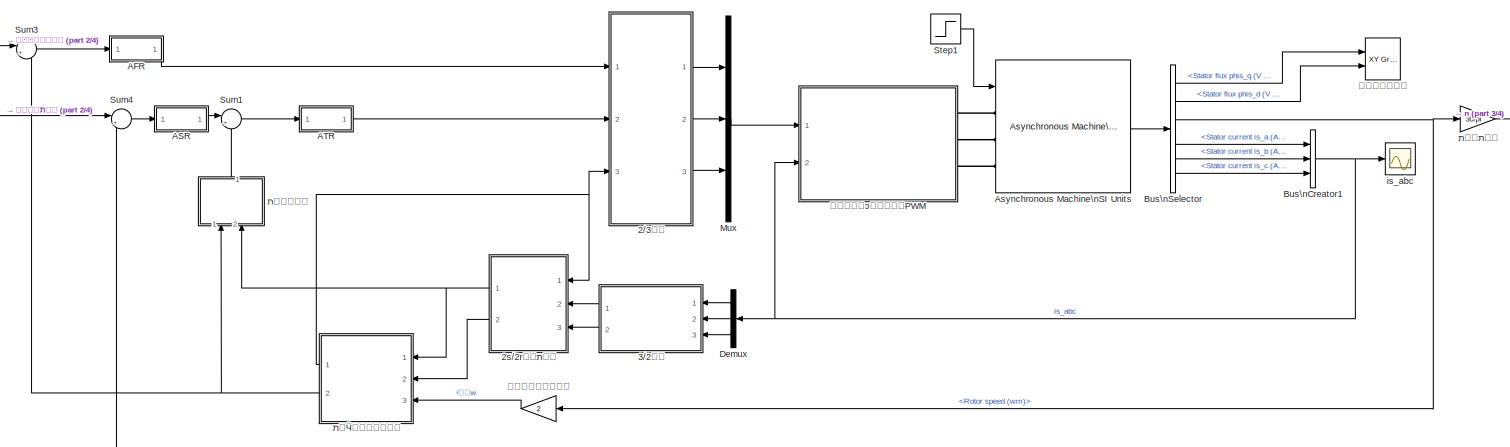
[diagram: root canvas - part 1/4, full width, top band]
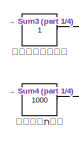
[diagram: root canvas - part 2/4, top left region]
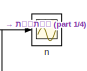
[diagram: root canvas - part 3/4, top right region]
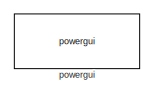
[diagram: root canvas - part 4/4, bottom left region]
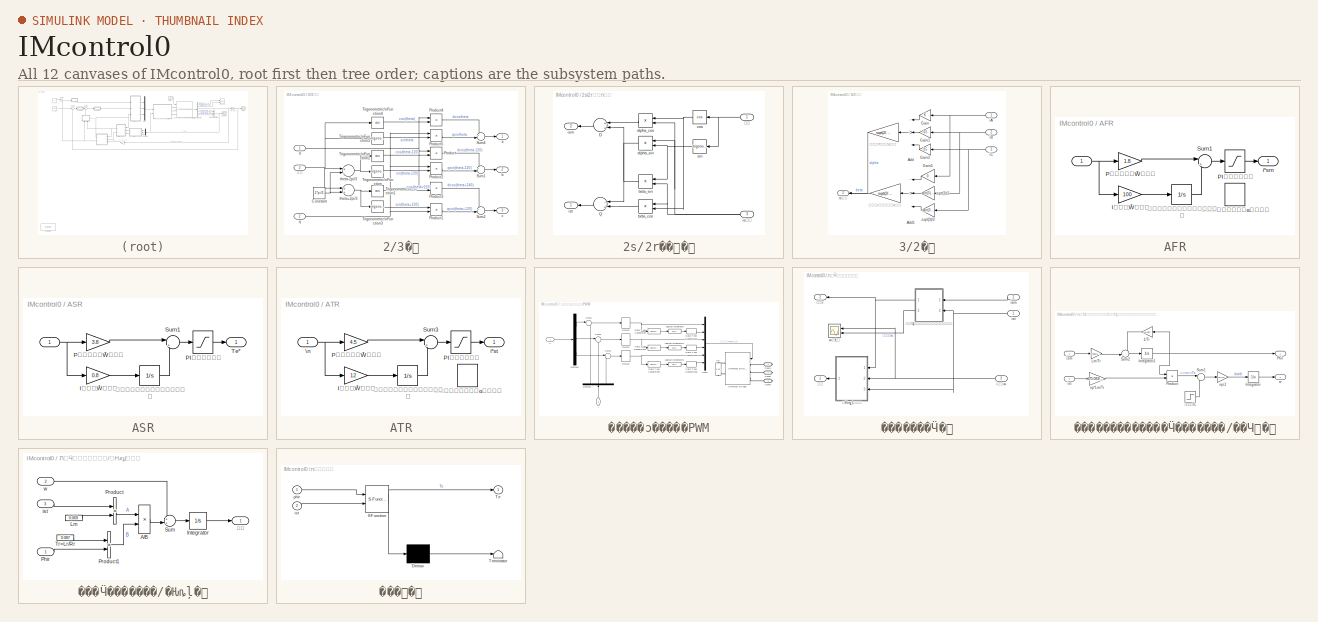
[diagram: thumbnail index - all 12 canvases of the model, root first then tree order]
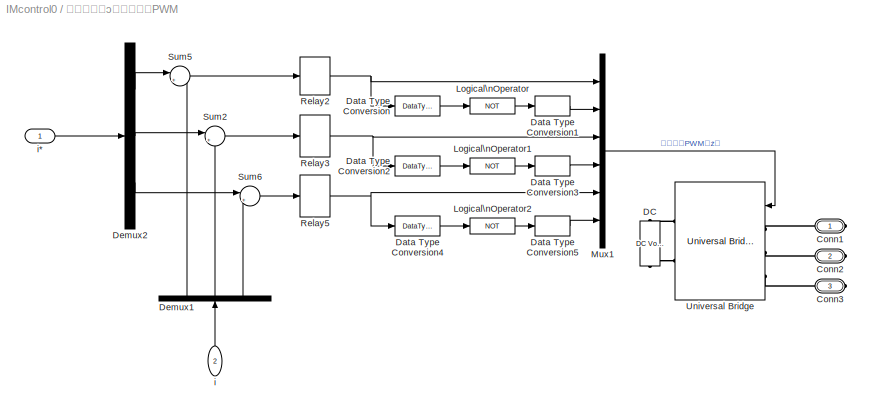
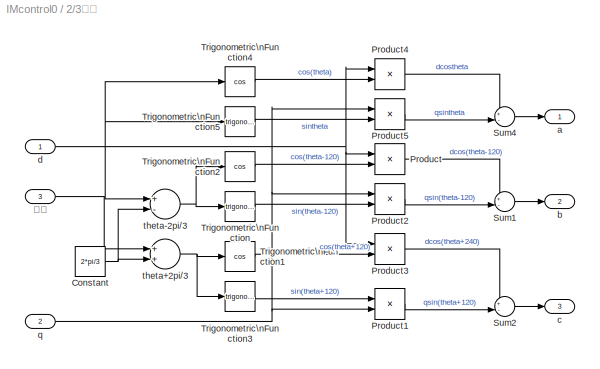
MODEL IMcontrol0
KIND model
BLOCK [SubSystem] 2//3变换
  Ports = [3, 3]
  RequestExecContextInheritance = off
  SID = 157
BLOCK [Constant] 2//3变换/Constant
  SID = 161
  Value = 2*pi/3
BLOCK [Product] 2//3变换/Product
  InputSameDT = off
  OutDataTypeStr = Inherit: Inherit via internal rule
  Ports = [2, 1]
  RndMeth = Floor
  SID = 162
  SaturateOnIntegerOverflow = off
BLOCK [Product] 2//3变换/Product1
  InputSameDT = off
  OutDataTypeStr = Inherit: Inherit via internal rule
  Ports = [2, 1]
  RndMeth = Floor
  SID = 163
  SaturateOnIntegerOverflow = off
BLOCK [Product] 2//3变换/Product2
  InputSameDT = off
  OutDataTypeStr = Inherit: Inherit via internal rule
  Ports = [2, 1]
  RndMeth = Floor
  SID = 164
  SaturateOnIntegerOverflow = off
BLOCK [Product] 2//3变换/Product3
  InputSameDT = off
  OutDataTypeStr = Inherit: Inherit via internal rule
  Ports = [2, 1]
  RndMeth = Floor
  SID = 165
  SaturateOnIntegerOverflow = off
BLOCK [Product] 2//3变换/Product4
  InputSameDT = off
  OutDataTypeStr = Inherit: Inherit via internal rule
  Ports = [2, 1]
  RndMeth = Floor
  SID = 166
  SaturateOnIntegerOverflow = off
BLOCK [Product] 2//3变换/Product5
  InputSameDT = off
  OutDataTypeStr = Inherit: Inherit via internal rule
  Ports = [2, 1]
  RndMeth = Floor
  SID = 167
  SaturateOnIntegerOverflow = off
BLOCK [Sum] 2//3变换/Sum1
  IconShape = round
  InputSameDT = off
  Inputs = +-|
  OutDataTypeStr = Inherit: Inherit via internal rule
  Ports = [2, 1]
  SID = 168
  SaturateOnIntegerOverflow = off
BLOCK [Sum] 2//3变换/Sum2
  IconShape = round
  InputSameDT = off
  Inputs = +-|
  OutDataTypeStr = Inherit: Inherit via internal rule
  Ports = [2, 1]
  SID = 169
  SaturateOnIntegerOverflow = off
BLOCK [Sum] 2//3变换/Sum4
  IconShape = round
  InputSameDT = off
  Inputs = +-|
  OutDataTypeStr = Inherit: Inherit via internal rule
  Ports = [2, 1]
  SID = 170
  SaturateOnIntegerOverflow = off
BLOCK [Trigonometry] 2//3变换/Trigonometric\nFunction
  Ports = [1, 1]
  SID = 171
BLOCK [Trigonometry] 2//3变换/Trigonometric\nFunction1
  Operator = cos
  Ports = [1, 1]
  SID = 172
BLOCK [Trigonometry] 2//3变换/Trigonometric\nFunction2
  Operator = cos
  Ports = [1, 1]
  SID = 173
BLOCK [Trigonometry] 2//3变换/Trigonometric\nFunction3
  Ports = [1, 1]
  SID = 174
BLOCK [Trigonometry] 2//3变换/Trigonometric\nFunction4
  Operator = cos
  Ports = [1, 1]
  SID = 175
BLOCK [Trigonometry] 2//3变换/Trigonometric\nFunction5
  Ports = [1, 1]
  SID = 176
BLOCK [Outport] 2//3变换/a
  IconDisplay = Port number
  SID = 179
  VectorParamsAs1DForOutWhenUnconnected = off
BLOCK [Outport] 2//3变换/b
  IconDisplay = Port number
  Port = 2
  SID = 180
  VectorParamsAs1DForOutWhenUnconnected = off
BLOCK [Outport] 2//3变换/c
  IconDisplay = Port number
  Port = 3
  SID = 181
  VectorParamsAs1DForOutWhenUnconnected = off
BLOCK [Inport] 2//3变换/d
  IconDisplay = Port number
  SID = 160
BLOCK [Inport] 2//3变换/q
  IconDisplay = Port number
  Port = 2
  SID = 158
BLOCK [Sum] 2//3变换/theta+2pi//3
  InputSameDT = off
  OutDataTypeStr = Inherit: Inherit via internal rule
  Ports = [2, 1]
  SID = 177
  SaturateOnIntegerOverflow = off
BLOCK [Sum] 2//3变换/theta-2pi//3
  InputSameDT = off
  Inputs = +-
  OutDataTypeStr = Inherit: Inherit via internal rule
  Ports = [2, 1]
  SID = 178
  SaturateOnIntegerOverflow = off
BLOCK [Inport] 2//3变换/¦Õ
  IconDisplay = Port number
  Port = 3
  SID = 159
BLOCK [SubSystem] 2s//2r旋转变换
  Ports = [3, 2]
  RequestExecContextInheritance = off
  SID = 242
BLOCK [Sum] 2s//2r旋转变换/D
  InputSameDT = off
  OutDataTypeStr = Inherit: Inherit via internal rule
  Ports = [2, 1]
  SID = 25
  SaturateOnIntegerOverflow = off
BLOCK [Sum] 2s//2r旋转变换/Q
  InputSameDT = off
  Inputs = -+
  OutDataTypeStr = Inherit: Inherit via internal rule
  Ports = [2, 1]
  SID = 30
  SaturateOnIntegerOverflow = off
BLOCK [Product] 2s//2r旋转变换/alpha_cos
  InputSameDT = off
  OutDataTypeStr = Inherit: Inherit via internal rule
  Ports = [2, 1]
  RndMeth = Floor
  SID = 37
  SaturateOnIntegerOverflow = off
BLOCK [Product] 2s//2r旋转变换/alpha_sin
  InputSameDT = off
  OutDataTypeStr = Inherit: Inherit via internal rule
  Ports = [2, 1]
  RndMeth = Floor
  SID = 38
  SaturateOnIntegerOverflow = off
BLOCK [Product] 2s//2r旋转变换/beta_cos
  InputSameDT = off
  OutDataTypeStr = Inherit: Inherit via internal rule
  Ports = [2, 1]
  RndMeth = Floor
  SID = 39
  SaturateOnIntegerOverflow = off
BLOCK [Product] 2s//2r旋转变换/beta_sin
  InputSameDT = off
  OutDataTypeStr = Inherit: Inherit via internal rule
  Ports = [2, 1]
  RndMeth = Floor
  SID = 40
  SaturateOnIntegerOverflow = off
BLOCK [Trigonometry] 2s//2r旋转变换/cos
  Operator = cos
  Ports = [1, 1]
  SID = 33
BLOCK [Outport] 2s//2r旋转变换/ism
  IconDisplay = Port number
  Port = 2
  SID = 247
BLOCK [Outport] 2s//2r旋转变换/ist
  IconDisplay = Port number
  SID = 246
BLOCK [Inport] 2s//2r旋转变换/is¦Á
  IconDisplay = Port number
  Port = 2
  SID = 244
BLOCK [Inport] 2s//2r旋转变换/is¦Â
  IconDisplay = Port number
  Port = 3
  SID = 245
BLOCK [Trigonometry] 2s//2r旋转变换/sin
  Ports = [1, 1]
  SID = 34
BLOCK [Inport] 2s//2r旋转变换/¦Õ
  IconDisplay = Port number
  SID = 243
BLOCK [SubSystem] 3//2变换
  Ports = [3, 2]
  RequestExecContextInheritance = off
  SID = 235
BLOCK [Gain] 3//2变换/-sqrt(3)//2
  Gain = -sqrt(3)/2
  OutDataTypeStr = Inherit: Inherit via internal rule
  ParamDataTypeStr = Inherit: Inherit via internal rule
  SID = 22
  SaturateOnIntegerOverflow = off
BLOCK [Sum] 3//2变换/Add
  InputSameDT = off
  Inputs = 3
  OutDataTypeStr = Inherit: Inherit via internal rule
  Ports = [3, 1]
  SID = 23
  SaturateOnIntegerOverflow = off
BLOCK [Sum] 3//2变换/Add1
  InputSameDT = off
  Inputs = 3
  OutDataTypeStr = Inherit: Inherit via internal rule
  Ports = [3, 1]
  SID = 24
  SaturateOnIntegerOverflow = off
BLOCK [Gain] 3//2变换/Gain
  OutDataTypeStr = Inherit: Inherit via internal rule
  ParamDataTypeStr = Inherit: Inherit via internal rule
  SID = 26
  SaturateOnIntegerOverflow = off
BLOCK [Gain] 3//2变换/Gain1
  Gain = -0.5
  OutDataTypeStr = Inherit: Inherit via internal rule
  ParamDataTypeStr = Inherit: Inherit via internal rule
  SID = 27
  SaturateOnIntegerOverflow = off
BLOCK [Gain] 3//2变换/Gain2
  Gain = -0.5
  OutDataTypeStr = Inherit: Inherit via internal rule
  ParamDataTypeStr = Inherit: Inherit via internal rule
  SID = 28
  SaturateOnIntegerOverflow = off
BLOCK [Gain] 3//2变换/Gain5
  Gain = 0
  OutDataTypeStr = Inherit: Inherit via internal rule
  ParamDataTypeStr = Inherit: Inherit via internal rule
  SID = 29
  SaturateOnIntegerOverflow = off
BLOCK [Inport] 3//2变换/iA
  IconDisplay = Port number
  SID = 236
BLOCK [Inport] 3//2变换/iB
  IconDisplay = Port number
  Port = 2
  SID = 237
BLOCK [Inport] 3//2变换/iC
  IconDisplay = Port number
  Port = 3
  SID = 238
BLOCK [Outport] 3//2变换/is¦Á
  IconDisplay = Port number
  SID = 239
BLOCK [Outport] 3//2变换/is¦Â
  IconDisplay = Port number
  Port = 2
  SID = 240
BLOCK [Gain] 3//2变换/sqrt(3)//2
  Gain = sqrt(3)/2
  OutDataTypeStr = Inherit: Inherit via internal rule
  ParamDataTypeStr = Inherit: Inherit via internal rule
  SID = 41
  SaturateOnIntegerOverflow = off
BLOCK [Gain] 3//2变换/功率保持系数
  Gain = sqrt(2/3)
  OutDataTypeStr = Inherit: Inherit via internal rule
  ParamDataTypeStr = Inherit: Inherit via internal rule
  SID = 43
  SaturateOnIntegerOverflow = off
BLOCK [Gain] 3//2变换/功率不变保持系数
  Gain = sqrt(2/3)
  OutDataTypeStr = Inherit: Inherit via internal rule
  ParamDataTypeStr = Inherit: Inherit via internal rule
  SID = 42
  SaturateOnIntegerOverflow = off
BLOCK [SubSystem] AFR
  Ports = [1, 1]
  RequestExecContextInheritance = off
  SID = 126
BLOCK [Inport] AFR/ 
  IconDisplay = Port number
  SID = 127
BLOCK [Gain] AFR/I积分放大倍数
  Gain = 100
  OutDataTypeStr = Inherit: Inherit via internal rule
  ParamDataTypeStr = Inherit: Inherit via internal rule
  SID = 128
  SaturateOnIntegerOverflow = off
BLOCK [Saturate] AFR/PI输出限幅
  InputPortMap = u0
  LowerLimit = -13
  Ports = [1, 1]
  SID = 129
  UpperLimit = 13
BLOCK [Gain] AFR/P比例放大倍数
  Gain = 1.8
  OutDataTypeStr = Inherit: Inherit via internal rule
  ParamDataTypeStr = Inherit: Inherit via internal rule
  SID = 130
  SaturateOnIntegerOverflow = off
BLOCK [Sum] AFR/Sum1
  IconShape = round
  InputSameDT = off
  Inputs = |++
  OutDataTypeStr = Inherit: Inherit via internal rule
  Ports = [2, 1]
  SID = 131
  SaturateOnIntegerOverflow = off
BLOCK [Outport] AFR/i*sm
  IconDisplay = Port number
  SID = 134
  VectorParamsAs1DForOutWhenUnconnected = off
BLOCK [DiscreteIntegrator] AFR/带限幅的离散积分
  ICPrevOutput = DiscIntNeverNeededParam
  ICPrevScaledInput = DiscIntNeverNeededParam
  Ports = [1, 1]
  SID = 132
  SampleTime = 2e-5
BLOCK [Integrator] AFR/带限幅的连续积分
  LimitOutput = on
  LowerSaturationLimit = -15
  Ports = [1, 1]
  SID = 133
  UpperSaturationLimit = 15
BLOCK [SubSystem] ASR
  Ports = [1, 1]
  RequestExecContextInheritance = off
  SID = 146
BLOCK [Inport] ASR/  
  IconDisplay = Port number
  SID = 147
BLOCK [Gain] ASR/I积分放大倍数
  Gain = 0.8
  OutDataTypeStr = Inherit: Inherit via internal rule
  ParamDataTypeStr = Inherit: Inherit via internal rule
  SID = 148
  SaturateOnIntegerOverflow = off
BLOCK [Saturate] ASR/PI输出限幅
  InputPortMap = u0
  LowerLimit = -75
  Ports = [1, 1]
  SID = 149
  UpperLimit = 75
BLOCK [Gain] ASR/P比例放大倍数
  Gain = 3.8
  OutDataTypeStr = Inherit: Inherit via internal rule
  ParamDataTypeStr = Inherit: Inherit via internal rule
  SID = 150
  SaturateOnIntegerOverflow = off
BLOCK [Sum] ASR/Sum1
  IconShape = round
  InputSameDT = off
  Inputs = |++
  OutDataTypeStr = Inherit: Inherit via internal rule
  Ports = [2, 1]
  SID = 151
  SaturateOnIntegerOverflow = off
BLOCK [Outport] ASR/Te*
  IconDisplay = Port number
  SID = 153
  VectorParamsAs1DForOutWhenUnconnected = off
BLOCK [Integrator] ASR/带限幅的连续积分
  LimitOutput = on
  LowerSaturationLimit = -80
  Ports = [1, 1]
  SID = 152
  UpperSaturationLimit = 80
BLOCK [SubSystem] ATR
  Ports = [1, 1]
  RequestExecContextInheritance = off
  SID = 137
BLOCK [Gain] ATR/I积分放大倍数
  Gain = 12
  OutDataTypeStr = Inherit: Inherit via internal rule
  ParamDataTypeStr = Inherit: Inherit via internal rule
  SID = 139
  SaturateOnIntegerOverflow = off
BLOCK [Saturate] ATR/PI输出限幅
  InputPortMap = u0
  LowerLimit = -60
  Ports = [1, 1]
  SID = 140
  UpperLimit = 60
BLOCK [Gain] ATR/P比例放大倍数
  Gain = 4.5
  OutDataTypeStr = Inherit: Inherit via internal rule
  ParamDataTypeStr = Inherit: Inherit via internal rule
  SID = 141
  SaturateOnIntegerOverflow = off
BLOCK [Sum] ATR/Sum3
  IconShape = round
  InputSameDT = off
  Inputs = |++
  OutDataTypeStr = Inherit: Inherit via internal rule
  Ports = [2, 1]
  SID = 142
  SaturateOnIntegerOverflow = off
BLOCK [Inport] ATR/\n
  IconDisplay = Port number
  SID = 138
BLOCK [Outport] ATR/i*st
  IconDisplay = Port number
  SID = 145
  VectorParamsAs1DForOutWhenUnconnected = off
BLOCK [DiscreteIntegrator] ATR/带限幅的离散积分
  ICPrevOutput = DiscIntNeverNeededParam
  ICPrevScaledInput = DiscIntNeverNeededParam
  Ports = [1, 1]
  SID = 143
  SampleTime = 2e-5
BLOCK [Integrator] ATR/带限幅的连续积分
  LimitOutput = on
  LowerSaturationLimit = -65
  Ports = [1, 1]
  SID = 144
  UpperSaturationLimit = 65
BLOCK [Reference] Asynchronous Machine\nSI Units  REF=powerlib/Machines/Asynchronous Machine\nSI Units
  Cage1 = [0.4155 0.002066]
  Cage2 = [0.4168 0.0003495]
  InitialConditions = [1 0 0 0 0 0 0 0]
  IterativeDiscreteModel = Trapezoidal non iterative
  IterativeModel = Trapezoidal non iterative
  Lm = 0.069
  LoadFlowParameters = 1492000
  MeasurementBus = off
  Mechanical = [0.19 0 2]
  MechanicalLoad = Torque Tm
  NominalParameters = [2200 380 50]
  Pmec = 1.492e+006
  PolePairs = 2
  Ports = [1, 1, 0, 0, 0, 3]
  PresetModel = No
  ReferenceFrame = Stationary
  Rotor = [0.816 0.002]
  RotorType = Squirrel-cage
  SID = 46
  Saturation = [14.03593122, 27.81365428, 53.79336849, 72.68890987, 97.98006896, 148.6815601, 215.7428561, 302.9841135, 428.7778367 ; 230, 322, 414, 460, 506, 552, 598, 644, 690]
  ShowDetailedParameters = on
  SimulateSaturation = off
  SourceBlock = powerlib/Machines/Asynchronous Machine\nSI Units
  SourceProductBaseCode = PS
  SourceProductName = Simscape Electrical
  SourceType = Asynchronous Machine
  Stator = [0.435 0.002]
  TsBlock = -1
  TsPowergui = 0
  Units = SI
BLOCK [BusCreator] Bus\nCreator1
  DisplayOption = bar
  InheritFromInputs = on
  Inputs = 3
  Ports = [3, 1]
  SID = 204
BLOCK [BusSelector] Bus\nSelector
  OutputAsBus = off
  OutputSignals = Stator measurements.Stator flux phis_q (V s),Stator measurements.Stator flux phis_d (V s),Mechanical.Rotor speed (wm),Stator measurements.Stator current is_a (A),Stator measurements.Stator current is_b (A),Stator measurements.Stator current is_c (A)
  Ports = [1, 6]
  SID = 205
BLOCK [Demux] Demux
  DisplayOption = bar
  Outputs = 3
  Ports = [1, 3]
  SID = 217
BLOCK [Mux] Mux
  DisplayOption = bar
  Inputs = 3
  Ports = [3, 1]
  SID = 156
BLOCK [Step] Step1
  After = 55
  SID = 60
  SampleTime = 0
  Time = 0.6
BLOCK [Sum] Sum1
  IconShape = round
  InputSameDT = off
  Inputs = |+-
  OutDataTypeStr = Inherit: Inherit via internal rule
  Ports = [2, 1]
  SID = 122
  SaturateOnIntegerOverflow = off
BLOCK [Sum] Sum3
  IconShape = round
  InputSameDT = off
  Inputs = |+-
  OutDataTypeStr = Inherit: Inherit via internal rule
  Ports = [2, 1]
  SID = 123
  SaturateOnIntegerOverflow = off
BLOCK [Sum] Sum4
  IconShape = round
  InputSameDT = off
  Inputs = |+-
  OutDataTypeStr = Inherit: Inherit via internal rule
  Ports = [2, 1]
  SID = 124
  SaturateOnIntegerOverflow = off
BLOCK [Scope] is_abc
  Floating = off
  NumInputPorts = 1
  Ports = [1]
  SID = 208
  ScopeSpecificationString = Simulink.scopes.TimeScopeBlockCfg('CurrentConfiguration', extmgr.ConfigurationSet(extmgr.Configuration('Core','General UI',true),extmgr.Configuration('Core','Source UI',true),extmgr.Configuration('Sources','WiredSimulink',true,'DataLoggingVariableName','ScopeData1'),extmgr.Configuration('Visuals','Time Domain',true,'SerializedDisplays',{struct('MinYLimReal','-77.32754','MaxYLimReal','77.3987','YLa...<+1533ch>
BLOCK [Scope] n
  Floating = off
  NumInputPorts = 1
  Ports = [1]
  SID = 209
  ScopeSpecificationString = Simulink.scopes.TimeScopeBlockCfg('CurrentConfiguration', extmgr.ConfigurationSet(extmgr.Configuration('Core','General UI',true),extmgr.Configuration('Core','Source UI',true),extmgr.Configuration('Sources','WiredSimulink',true),extmgr.Configuration('Visuals','Time Domain',true,'SerializedDisplays',{struct('MinYLimReal','-127.89091','MaxYLimReal','1151.0182','YLabelReal','','MinYLimMag',' 0.00000',...<+1415ch>
BLOCK [Reference] powergui  REF=powerlib/powergui
  AutomaticDiscreteSolvers = off
  ContinueOnMaxIteration = off
  CurrentSourceSwitches = off
  DisableRonSwitches = off
  DisableSnubberDevices = off
  DisableVfSwitches = off
  DisplayEquations = off
  DisplayStyle = 1
  EnableUseOfTLC = off
  ErrMax = 1e-4
  ExternalGateDelay = off
  Frange = [0:2:500]
  FreqAxis = off
  FunctionMessages = off
  HookPort = off
  Interpol = off
  Iterations = 50
  MaxFrequency = 1000
  NonlinearTolerance = 1e-4
  Pbase = 100e6
  Ports = []
  ResistiveCurrentMeasurement = off
  RestoreLinks = warning
  RmsSteady = 1
  SID = 216
  SPID = on
  SampleTime = 0.00001
  ShowGrid = off
  SolverType = Tustin/Backward Euler (TBE)
  SourceBlock = powerlib/powergui
  SourceProductBaseCode = PS
  SourceProductName = Simscape Electrical
  SourceType = PSB option menu block
  StartTime = 0.0
  SwTol = 0
  Ts = 100
  UnitsV = kV
  UnitsW = MW
  Xlog = on
  Ylog = off
  ZoomFFT = on
  buscounter = 0
  cycles = 1
  display = off
  echomessages = off
  frequency = 50
  frequencyindice = 50
  frequencyindicesteady = 1
  fundamental = 60
  methode = off
  nMaxIteration = 100
  save = off
  structure = 0
  variable = ZData
  x0status = zero
BLOCK [Reference] 磁链观测  REF=simulink/Sinks/XY Graph
  Ports = [2]
  SID = 210
  SourceBlock = simulink/Sinks/XY Graph
  SourceProductBaseCode = SL
  SourceProductName = Simulink
  SourceType = XY scope.
  st = -1
  xmax = 1
  xmin = -1
  ymax = 1
  ymin = -1
BLOCK [SubSystem] 电流滞环跟踪PWM
  Ports = [2, 0, 0, 0, 0, 0, 3]
  RequestExecContextInheritance = off
  SID = 227
BLOCK [PMIOPort] 电流滞环跟踪PWM/Conn1
  SID = 230
  Side = Right
BLOCK [PMIOPort] 电流滞环跟踪PWM/Conn2
  Port = 2
  SID = 231
  Side = Right
BLOCK [PMIOPort] 电流滞环跟踪PWM/Conn3
  Port = 3
  SID = 232
  Side = Right
BLOCK [Reference] 电流滞环跟踪PWM/DC  REF=powerlib/Electrical\nSources/DC Voltage Source
  Amplitude = 510
  Measurements = None
  Ports = [0, 0, 0, 0, 0, 1, 1]
  SID = 212
  SourceBlock = powerlib/Electrical\nSources/DC Voltage Source
  SourceProductBaseCode = PS
  SourceProductName = Simscape Electrical
  SourceType = DC Voltage Source
BLOCK [DataTypeConversion] 电流滞环跟踪PWM/Data Type Conversion
  RndMeth = Floor
  SID = 185
  SaturateOnIntegerOverflow = off
BLOCK [DataTypeConversion] 电流滞环跟踪PWM/Data Type Conversion1
  RndMeth = Floor
  SID = 186
  SaturateOnIntegerOverflow = off
BLOCK [DataTypeConversion] 电流滞环跟踪PWM/Data Type Conversion2
  RndMeth = Floor
  SID = 187
  SaturateOnIntegerOverflow = off
BLOCK [DataTypeConversion] 电流滞环跟踪PWM/Data Type Conversion3
  RndMeth = Floor
  SID = 188
  SaturateOnIntegerOverflow = off
BLOCK [DataTypeConversion] 电流滞环跟踪PWM/Data Type Conversion4
  RndMeth = Floor
  SID = 189
  SaturateOnIntegerOverflow = off
BLOCK [DataTypeConversion] 电流滞环跟踪PWM/Data Type Conversion5
  RndMeth = Floor
  SID = 190
  SaturateOnIntegerOverflow = off
BLOCK [Demux] 电流滞环跟踪PWM/Demux1
  DisplayOption = bar
  Outputs = 3
  Ports = [1, 3]
  SID = 192
BLOCK [Demux] 电流滞环跟踪PWM/Demux2
  DisplayOption = bar
  Outputs = 3
  Ports = [1, 3]
  SID = 191
BLOCK [Logic] 电流滞环跟踪PWM/Logical\nOperator
  AllPortsSameDT = off
  Inputs = 1
  Operator = NOT
  Ports = [1, 1]
  SID = 193
BLOCK [Logic] 电流滞环跟踪PWM/Logical\nOperator1
  AllPortsSameDT = off
  Inputs = 1
  Operator = NOT
  Ports = [1, 1]
  SID = 194
BLOCK [Logic] 电流滞环跟踪PWM/Logical\nOperator2
  AllPortsSameDT = off
  Inputs = 1
  Operator = NOT
  Ports = [1, 1]
  SID = 195
BLOCK [Mux] 电流滞环跟踪PWM/Mux1
  DisplayOption = bar
  Inputs = 6
  Ports = [6, 1]
  SID = 196
BLOCK [Relay] 电流滞环跟踪PWM/Relay2
  OffSwitchValue = -0.2
  OnSwitchValue = 0.2
  SID = 197
  ZeroCross = off
BLOCK [Relay] 电流滞环跟踪PWM/Relay3
  OffSwitchValue = -0.2
  OnSwitchValue = 0.2
  SID = 198
  ZeroCross = off
BLOCK [Relay] 电流滞环跟踪PWM/Relay5
  OffSwitchValue = -0.2
  OnSwitchValue = 0.2
  SID = 199
  ZeroCross = off
BLOCK [Sum] 电流滞环跟踪PWM/Sum2
  IconShape = round
  InputSameDT = off
  Inputs = |+-
  OutDataTypeStr = Inherit: Inherit via internal rule
  Ports = [2, 1]
  SID = 201
  SaturateOnIntegerOverflow = off
BLOCK [Sum] 电流滞环跟踪PWM/Sum5
  IconShape = round
  InputSameDT = off
  Inputs = |+-
  OutDataTypeStr = Inherit: Inherit via internal rule
  Ports = [2, 1]
  SID = 200
  SaturateOnIntegerOverflow = off
BLOCK [Sum] 电流滞环跟踪PWM/Sum6
  IconShape = round
  InputSameDT = off
  Inputs = |+-
  OutDataTypeStr = Inherit: Inherit via internal rule
  Ports = [2, 1]
  SID = 202
  SaturateOnIntegerOverflow = off
BLOCK [Reference] 电流滞环跟踪PWM/Universal Bridge  REF=powerlib/Power\nElectronics/Universal Bridge
  Arms = 3
  Device = IGBT / Diodes
  ForwardVoltage = 0
  ForwardVoltages = [  0  0  ]
  GTOparameters = [ 10e-6 , 20e-6 ]
  IGBTparameters = [ 1e-6 , 2e-6 ]
  Lon = 0
  Measurements = None
  Measurements_2 = None
  Ports = [1, 0, 0, 0, 0, 3, 2]
  Ron = 1e-3
  SID = 214
  SnubberCapacitance = inf
  SnubberResistance = 1e5
  SourceBlock = powerlib/Power\nElectronics/Universal Bridge
  SourceProductBaseCode = PS
  SourceProductName = Simscape Electrical
  SourceType = Universal Bridge
  converterType = Rectifier
BLOCK [Inport] 电流滞环跟踪PWM/i
  IconDisplay = Port number
  Port = 2
  SID = 229
BLOCK [Inport] 电流滞环跟踪PWM/i*
  IconDisplay = Port number
  SID = 228
BLOCK [Gain] 电气角速度
  Gain = 2
  OutDataTypeStr = Inherit: Inherit via internal rule
  ParamDataTypeStr = Inherit: Inherit via internal rule
  SID = 221
  SaturateOnIntegerOverflow = off
BLOCK [Constant] 给定磁链
  SID = 135
BLOCK [Constant] 给定转速
  SID = 136
  Value = 1000
BLOCK [SubSystem] 转矩计算
  ErrorFcn = Stateflow.Translate.translate
  PermitHierarchicalResolution = ExplicitOnly
  Ports = [2, 1]
  RequestExecContextInheritance = off
  SFBlockType = MATLAB Function
  SID = 82
  TreatAsAtomicUnit = on
BLOCK [Demux] 转矩计算/ Demux 
  Outputs = 1
  Ports = [1, 1]
  SID = 82::24
BLOCK [S-Function] 转矩计算/ SFunction 
  EnableBusSupport = on
  FunctionName = sf_sfun
  PortCounts = [2 2]
  Ports = [2, 2]
  SFcnIsStateOwnerBlock = off
  SFunctionDeploymentMode = off
  SID = 82::23
  Tag = Stateflow S-Function 2
BLOCK [Terminator] 转矩计算/ Terminator 
  SID = 82::25
BLOCK [Outport] 转矩计算/Te
  IconDisplay = Port number
  SID = 82::5
  VectorParamsAs1DForOutWhenUnconnected = off
BLOCK [Inport] 转矩计算/ist
  IconDisplay = Port number
  Port = 2
  SID = 82::22
BLOCK [Inport] 转矩计算/phir
  IconDisplay = Port number
  SID = 82::1
BLOCK [Gain] 转速转换
  Gain = 30/pi
  OutDataTypeStr = Inherit: Inherit via internal rule
  ParamDataTypeStr = Inherit: Inherit via internal rule
  SID = 211
  SaturateOnIntegerOverflow = off
BLOCK [SubSystem] 转子磁链计算
  Ports = [3, 2]
  RequestExecContextInheritance = off
  SID = 249
BLOCK [Inport] 转子磁链计算/ism
  IconDisplay = Port number
  Port = 2
  SID = 253
BLOCK [Inport] 转子磁链计算/ist
  IconDisplay = Port number
  SID = 250
BLOCK [Scope] 转子磁链计算/w比较
  Floating = off
  NumInputPorts = 2
  Ports = [2]
  SID = 222
  ScopeSpecificationString = Simulink.scopes.TimeScopeBlockCfg('CurrentConfiguration', extmgr.ConfigurationSet(extmgr.Configuration('Core','General UI',true),extmgr.Configuration('Core','Source UI',true),extmgr.Configuration('Sources','WiredSimulink',true,'DataLoggingVariableName','ScopeData1'),extmgr.Configuration('Visuals','Time Domain',true,'SerializedDisplays',{struct('MinYLimReal','-26.78731','MaxYLimReal','241.08575','Y...<+1438ch>
BLOCK [Outport] 转子磁链计算/¦Õ
  IconDisplay = Port number
  SID = 254
BLOCK [Outport] 转子磁链计算/¦×r
  IconDisplay = Port number
  Port = 2
  SID = 255
BLOCK [SubSystem] 转子磁链计算/等效直流电机参数计算
  Ports = [2, 2]
  RequestExecContextInheritance = off
  SID = 115
BLOCK [Gain] 转子磁链计算/等效直流电机参数计算/1//Tr
  Gain = 1/0.087
  OutDataTypeStr = Inherit: Inherit via internal rule
  ParamDataTypeStr = Inherit: Inherit via internal rule
  SID = 87
  SaturateOnIntegerOverflow = off
BLOCK [Integrator] 转子磁链计算/等效直流电机参数计算/Integrator
  Ports = [1, 1]
  SID = 88
BLOCK [Integrator] 转子磁链计算/等效直流电机参数计算/Integrator1
  InitialCondition = 1e-5
  Ports = [1, 1]
  SID = 114
BLOCK [Gain] 转子磁链计算/等效直流电机参数计算/Lm//Tr
  Gain = 0.069/0.087
  OutDataTypeStr = Inherit: Inherit via internal rule
  ParamDataTypeStr = Inherit: Inherit via internal rule
  SID = 89
  SaturateOnIntegerOverflow = off
BLOCK [Outport] 转子磁链计算/等效直流电机参数计算/Phir
  IconDisplay = Port number
  SID = 118
  VectorParamsAs1DForOutWhenUnconnected = off
BLOCK [Product] 转子磁链计算/等效直流电机参数计算/Product
  InputSameDT = off
  OutDataTypeStr = Inherit: Inherit via internal rule
  Ports = [2, 1]
  RndMeth = Floor
  SID = 90
  SaturateOnIntegerOverflow = off
BLOCK [Sum] 转子磁链计算/等效直流电机参数计算/Sum1
  IconShape = round
  InputSameDT = off
  Inputs = |+-
  OutDataTypeStr = Inherit: Inherit via internal rule
  Ports = [2, 1]
  SID = 92
  SaturateOnIntegerOverflow = off
BLOCK [Sum] 转子磁链计算/等效直流电机参数计算/Sum2
  IconShape = round
  InputSameDT = off
  Inputs = -+|
  OutDataTypeStr = Inherit: Inherit via internal rule
  Ports = [2, 1]
  SID = 113
  SaturateOnIntegerOverflow = off
BLOCK [Inport] 转子磁链计算/等效直流电机参数计算/ism
  IconDisplay = Port number
  SID = 116
BLOCK [Inport] 转子磁链计算/等效直流电机参数计算/ist
  IconDisplay = Port number
  Port = 2
  SID = 117
BLOCK [Gain] 转子磁链计算/等效直流电机参数计算/np*Lm//Tr
  Gain = 2*0.069/0.087
  OutDataTypeStr = Inherit: Inherit via internal rule
  ParamDataTypeStr = Inherit: Inherit via internal rule
  SID = 93
  SaturateOnIntegerOverflow = off
BLOCK [Gain] 转子磁链计算/等效直流电机参数计算/np//J
  Gain = 2/0.19
  OutDataTypeStr = Inherit: Inherit via internal rule
  ParamDataTypeStr = Inherit: Inherit via internal rule
  SID = 94
  SaturateOnIntegerOverflow = off
BLOCK [Outport] 转子磁链计算/等效直流电机参数计算/w
  IconDisplay = Port number
  Port = 2
  SID = 119
  VectorParamsAs1DForOutWhenUnconnected = off
BLOCK [Step] 转子磁链计算/等效直流电机参数计算/¸ºÔØTL
  After = 55
  SID = 96
  SampleTime = 0
  Time = 0.6
BLOCK [SubSystem] 转子磁链计算/角度的计算
  Ports = [3, 1]
  RequestExecContextInheritance = off
  SID = 77
BLOCK [Product] 转子磁链计算/角度的计算/A//B
  InputSameDT = off
  Inputs = */
  OutDataTypeStr = Inherit: Inherit via internal rule
  Ports = [2, 1]
  RndMeth = Floor
  SID = 74
  SaturateOnIntegerOverflow = off
BLOCK [Integrator] 转子磁链计算/角度的计算/Integrator
  Ports = [1, 1]
  SID = 76
BLOCK [Constant] 转子磁链计算/角度的计算/Lm
  SID = 70
  Value = 0.069
BLOCK [Inport] 转子磁链计算/角度的计算/Phir
  IconDisplay = Port number
  SID = 80
BLOCK [Product] 转子磁链计算/角度的计算/Product
  InputSameDT = off
  OutDataTypeStr = Inherit: Inherit via internal rule
  Ports = [2, 1]
  RndMeth = Floor
  SID = 73
  SaturateOnIntegerOverflow = off
BLOCK [Product] 转子磁链计算/角度的计算/Product1
  InputSameDT = off
  OutDataTypeStr = Inherit: Inherit via internal rule
  Ports = [2, 1]
  RndMeth = Floor
  SID = 75
  SaturateOnIntegerOverflow = off
BLOCK [Sum] 转子磁链计算/角度的计算/Sum
  IconShape = round
  InputSameDT = off
  Inputs = ++|
  OutDataTypeStr = Inherit: Inherit via internal rule
  Ports = [2, 1]
  SID = 72
  SaturateOnIntegerOverflow = off
BLOCK [Constant] 转子磁链计算/角度的计算/Tr=Lr//Rr
  SID = 71
  Value = 0.087
BLOCK [Inport] 转子磁链计算/角度的计算/ist
  IconDisplay = Port number
  Port = 3
  SID = 79
BLOCK [Inport] 转子磁链计算/角度的计算/w
  IconDisplay = Port number
  Port = 2
  SID = 78
BLOCK [Outport] 转子磁链计算/角度的计算/¦Õ
  IconDisplay = Port number
  SID = 81
  VectorParamsAs1DForOutWhenUnconnected = off
BLOCK [Inport] 转子磁链计算/Êµ¼Êw
  IconDisplay = Port number
  Port = 3
  SID = 252
NET 2//3变换/Constant:1 -> 2//3变换/theta+2pi//3:2, 2//3变换/theta-2pi//3:2
LINE 2//3变换/Product1:1 -> 2//3变换/Sum2:2
LINE 2//3变换/Product2:1 -> 2//3变换/Sum1:2
LINE 2//3变换/Product3:1 -> 2//3变换/Sum2:1
LINE 2//3变换/Product4:1 -> 2//3变换/Sum4:1
LINE 2//3变换/Product5:1 -> 2//3变换/Sum4:2
LINE 2//3变换/Product:1 -> 2//3变换/Sum1:1
LINE 2//3变换/Sum1:1 -> 2//3变换/b:1
LINE 2//3变换/Sum2:1 -> 2//3变换/c:1
LINE 2//3变换/Sum4:1 -> 2//3变换/a:1
LINE 2//3变换/Trigonometric\nFunction1:1 -> 2//3变换/Product3:2
LINE 2//3变换/Trigonometric\nFunction2:1 -> 2//3变换/Product:2
LINE 2//3变换/Trigonometric\nFunction3:1 -> 2//3变换/Product1:1
LINE 2//3变换/Trigonometric\nFunction4:1 -> 2//3变换/Product4:2
LINE 2//3变换/Trigonometric\nFunction5:1 -> 2//3变换/Product5:2
LINE 2//3变换/Trigonometric\nFunction:1 -> 2//3变换/Product2:2
NET 2//3变换/d:1 -> 2//3变换/Product3:1, 2//3变换/Product4:1, 2//3变换/Product:1
NET 2//3变换/q:1 -> 2//3变换/Product1:2, 2//3变换/Product2:1, 2//3变换/Product5:1
NET 2//3变换/theta+2pi//3:1 -> 2//3变换/Trigonometric\nFunction1:1, 2//3变换/Trigonometric\nFunction3:1
NET 2//3变换/theta-2pi//3:1 -> 2//3变换/Trigonometric\nFunction2:1, 2//3变换/Trigonometric\nFunction:1
NET 2//3变换/¦Õ:1 -> 2//3变换/Trigonometric\nFunction4:1, 2//3变换/Trigonometric\nFunction5:1, 2//3变换/theta+2pi//3:1, 2//3变换/theta-2pi//3:1
LINE 2//3变换:1 -> Mux:1
LINE 2//3变换:2 -> Mux:2
LINE 2//3变换:3 -> Mux:3
LINE 2s//2r旋转变换/D:1 -> 2s//2r旋转变换/ism:1
LINE 2s//2r旋转变换/Q:1 -> 2s//2r旋转变换/ist:1
LINE 2s//2r旋转变换/alpha_cos:1 -> 2s//2r旋转变换/D:1
LINE 2s//2r旋转变换/alpha_sin:1 -> 2s//2r旋转变换/Q:1
LINE 2s//2r旋转变换/beta_cos:1 -> 2s//2r旋转变换/Q:2
LINE 2s//2r旋转变换/beta_sin:1 -> 2s//2r旋转变换/D:2
NET 2s//2r旋转变换/cos:1 -> 2s//2r旋转变换/alpha_cos:1, 2s//2r旋转变换/beta_cos:2
NET 2s//2r旋转变换/is¦Á:1 -> 2s//2r旋转变换/alpha_cos:2, 2s//2r旋转变换/alpha_sin:1
NET 2s//2r旋转变换/is¦Â:1 -> 2s//2r旋转变换/beta_cos:1, 2s//2r旋转变换/beta_sin:2
NET 2s//2r旋转变换/sin:1 -> 2s//2r旋转变换/alpha_sin:2, 2s//2r旋转变换/beta_sin:1
NET 2s//2r旋转变换/¦Õ:1 -> 2s//2r旋转变换/cos:1, 2s//2r旋转变换/sin:1
NET 2s//2r旋转变换:1 -> 转矩计算:2, 转子磁链计算:1
LINE 2s//2r旋转变换:2 -> 转子磁链计算:2
LINE 3//2变换/-sqrt(3)//2:1 -> 3//2变换/Add1:3
LINE 3//2变换/Add1:1 -> 3//2变换/功率不变保持系数:1
LINE 3//2变换/Add:1 -> 3//2变换/功率保持系数:1
LINE 3//2变换/Gain1:1 -> 3//2变换/Add:2
LINE 3//2变换/Gain2:1 -> 3//2变换/Add:3
LINE 3//2变换/Gain5:1 -> 3//2变换/Add1:1
LINE 3//2变换/Gain:1 -> 3//2变换/Add:1
NET 3//2变换/iA:1 -> 3//2变换/Gain5:1, 3//2变换/Gain:1
NET 3//2变换/iB:1 -> 3//2变换/Gain1:1, 3//2变换/sqrt(3)//2:1
NET 3//2变换/iC:1 -> 3//2变换/-sqrt(3)//2:1, 3//2变换/Gain2:1
LINE 3//2变换/sqrt(3)//2:1 -> 3//2变换/Add1:2
LINE 3//2变换/功率保持系数:1 -> 3//2变换/is¦Á:1
LINE 3//2变换/功率不变保持系数:1 -> 3//2变换/is¦Â:1
LINE 3//2变换:1 -> 2s//2r旋转变换:2
LINE 3//2变换:2 -> 2s//2r旋转变换:3
NET AFR/ :1 -> AFR/I积分放大倍数:1, AFR/P比例放大倍数:1
LINE AFR/I积分放大倍数:1 -> AFR/带限幅的连续积分:1
LINE AFR/PI输出限幅:1 -> AFR/i*sm:1
LINE AFR/P比例放大倍数:1 -> AFR/Sum1:1
LINE AFR/Sum1:1 -> AFR/PI输出限幅:1
LINE AFR/带限幅的连续积分:1 -> AFR/Sum1:2
LINE AFR:1 -> 2//3变换:1
NET ASR/  :1 -> ASR/I积分放大倍数:1, ASR/P比例放大倍数:1
LINE ASR/I积分放大倍数:1 -> ASR/带限幅的连续积分:1
LINE ASR/PI输出限幅:1 -> ASR/Te*:1
LINE ASR/P比例放大倍数:1 -> ASR/Sum1:1
LINE ASR/Sum1:1 -> ASR/PI输出限幅:1
LINE ASR/带限幅的连续积分:1 -> ASR/Sum1:2
LINE ASR:1 -> Sum1:1
LINE ATR/I积分放大倍数:1 -> ATR/带限幅的连续积分:1
LINE ATR/PI输出限幅:1 -> ATR/i*st:1
LINE ATR/P比例放大倍数:1 -> ATR/Sum3:1
LINE ATR/Sum3:1 -> ATR/PI输出限幅:1
NET ATR/\n:1 -> ATR/I积分放大倍数:1, ATR/P比例放大倍数:1
LINE ATR/带限幅的连续积分:1 -> ATR/Sum3:2
LINE ATR:1 -> 2//3变换:2
LINE Asynchronous Machine\nSI Units:1 -> Bus\nSelector:1
NET Bus\nCreator1:1 -> Demux:1, is_abc:1, 电流滞环跟踪PWM:2
LINE Bus\nSelector:1 -> 磁链观测:1
LINE Bus\nSelector:2 -> 磁链观测:2
NET Bus\nSelector:3 -> 电气角速度:1, 转速转换:1
LINE Bus\nSelector:4 -> Bus\nCreator1:1
LINE Bus\nSelector:5 -> Bus\nCreator1:2
LINE Bus\nSelector:6 -> Bus\nCreator1:3
LINE Demux:1 -> 3//2变换:1
LINE Demux:2 -> 3//2变换:2
LINE Demux:3 -> 3//2变换:3
LINE Mux:1 -> 电流滞环跟踪PWM:1
LINE Step1:1 -> Asynchronous Machine\nSI Units:1
LINE Sum1:1 -> ATR:1
LINE Sum3:1 -> AFR:1
LINE Sum4:1 -> ASR:1
LINE 电流滞环跟踪PWM/Data Type Conversion1:1 -> 电流滞环跟踪PWM/Mux1:2
LINE 电流滞环跟踪PWM/Data Type Conversion2:1 -> 电流滞环跟踪PWM/Logical\nOperator1:1
LINE 电流滞环跟踪PWM/Data Type Conversion3:1 -> 电流滞环跟踪PWM/Mux1:4
LINE 电流滞环跟踪PWM/Data Type Conversion4:1 -> 电流滞环跟踪PWM/Logical\nOperator2:1
LINE 电流滞环跟踪PWM/Data Type Conversion5:1 -> 电流滞环跟踪PWM/Mux1:6
LINE 电流滞环跟踪PWM/Data Type Conversion:1 -> 电流滞环跟踪PWM/Logical\nOperator:1
LINE 电流滞环跟踪PWM/Demux1:1 -> 电流滞环跟踪PWM/Sum5:2
LINE 电流滞环跟踪PWM/Demux1:2 -> 电流滞环跟踪PWM/Sum2:2
LINE 电流滞环跟踪PWM/Demux1:3 -> 电流滞环跟踪PWM/Sum6:2
LINE 电流滞环跟踪PWM/Demux2:1 -> 电流滞环跟踪PWM/Sum5:1
LINE 电流滞环跟踪PWM/Demux2:2 -> 电流滞环跟踪PWM/Sum2:1
LINE 电流滞环跟踪PWM/Demux2:3 -> 电流滞环跟踪PWM/Sum6:1
LINE 电流滞环跟踪PWM/Logical\nOperator1:1 -> 电流滞环跟踪PWM/Data Type Conversion3:1
LINE 电流滞环跟踪PWM/Logical\nOperator2:1 -> 电流滞环跟踪PWM/Data Type Conversion5:1
LINE 电流滞环跟踪PWM/Logical\nOperator:1 -> 电流滞环跟踪PWM/Data Type Conversion1:1
LINE 电流滞环跟踪PWM/Mux1:1 -> 电流滞环跟踪PWM/Universal Bridge:1
NET 电流滞环跟踪PWM/Relay2:1 -> 电流滞环跟踪PWM/Data Type Conversion:1, 电流滞环跟踪PWM/Mux1:1
NET 电流滞环跟踪PWM/Relay3:1 -> 电流滞环跟踪PWM/Data Type Conversion2:1, 电流滞环跟踪PWM/Mux1:3
NET 电流滞环跟踪PWM/Relay5:1 -> 电流滞环跟踪PWM/Data Type Conversion4:1, 电流滞环跟踪PWM/Mux1:5
LINE 电流滞环跟踪PWM/Sum2:1 -> 电流滞环跟踪PWM/Relay3:1
LINE 电流滞环跟踪PWM/Sum5:1 -> 电流滞环跟踪PWM/Relay2:1
LINE 电流滞环跟踪PWM/Sum6:1 -> 电流滞环跟踪PWM/Relay5:1
LINE 电流滞环跟踪PWM/i*:1 -> 电流滞环跟踪PWM/Demux2:1
LINE 电流滞环跟踪PWM/i:1 -> 电流滞环跟踪PWM/Demux1:1
LINE 电气角速度:1 -> 转子磁链计算:3
LINE 给定磁链:1 -> Sum3:1
LINE 给定转速:1 -> Sum4:1
LINE 转矩计算/ Demux :1 -> 转矩计算/ Terminator :1
LINE 转矩计算/ SFunction :1 -> 转矩计算/ Demux :1
LINE 转矩计算/ SFunction :2 -> 转矩计算/Te:1
LINE 转矩计算/ist:1 -> 转矩计算/ SFunction :2
LINE 转矩计算/phir:1 -> 转矩计算/ SFunction :1
LINE 转矩计算:1 -> Sum1:2
NET 转速转换:1 -> Sum4:2, n:1
LINE 转子磁链计算/ism:1 -> 转子磁链计算/等效直流电机参数计算:1
NET 转子磁链计算/ist:1 -> 转子磁链计算/等效直流电机参数计算:2, 转子磁链计算/角度的计算:3
LINE 转子磁链计算/等效直流电机参数计算/1//Tr:1 -> 转子磁链计算/等效直流电机参数计算/Sum2:1
NET 转子磁链计算/等效直流电机参数计算/Integrator1:1 -> 转子磁链计算/等效直流电机参数计算/1//Tr:1, 转子磁链计算/等效直流电机参数计算/Phir:1, 转子磁链计算/等效直流电机参数计算/Product:1
LINE 转子磁链计算/等效直流电机参数计算/Integrator:1 -> 转子磁链计算/等效直流电机参数计算/w:1
LINE 转子磁链计算/等效直流电机参数计算/Lm//Tr:1 -> 转子磁链计算/等效直流电机参数计算/Sum2:2
LINE 转子磁链计算/等效直流电机参数计算/Product:1 -> 转子磁链计算/等效直流电机参数计算/Sum1:1
LINE 转子磁链计算/等效直流电机参数计算/Sum1:1 -> 转子磁链计算/等效直流电机参数计算/np//J:1
LINE 转子磁链计算/等效直流电机参数计算/Sum2:1 -> 转子磁链计算/等效直流电机参数计算/Integrator1:1
LINE 转子磁链计算/等效直流电机参数计算/ism:1 -> 转子磁链计算/等效直流电机参数计算/Lm//Tr:1
LINE 转子磁链计算/等效直流电机参数计算/ist:1 -> 转子磁链计算/等效直流电机参数计算/np*Lm//Tr:1
LINE 转子磁链计算/等效直流电机参数计算/np*Lm//Tr:1 -> 转子磁链计算/等效直流电机参数计算/Product:2
LINE 转子磁链计算/等效直流电机参数计算/np//J:1 -> 转子磁链计算/等效直流电机参数计算/Integrator:1
LINE 转子磁链计算/等效直流电机参数计算/¸ºÔØTL:1 -> 转子磁链计算/等效直流电机参数计算/Sum1:2
NET 转子磁链计算/等效直流电机参数计算:1 -> 转子磁链计算/¦×r:1, 转子磁链计算/角度的计算:1
LINE 转子磁链计算/等效直流电机参数计算:2 -> 转子磁链计算/w比较:2
LINE 转子磁链计算/角度的计算/A//B:1 -> 转子磁链计算/角度的计算/Sum:2
LINE 转子磁链计算/角度的计算/Integrator:1 -> 转子磁链计算/角度的计算/¦Õ:1
LINE 转子磁链计算/角度的计算/Lm:1 -> 转子磁链计算/角度的计算/Product:2
LINE 转子磁链计算/角度的计算/Phir:1 -> 转子磁链计算/角度的计算/Product1:2
LINE 转子磁链计算/角度的计算/Product1:1 -> 转子磁链计算/角度的计算/A//B:2
LINE 转子磁链计算/角度的计算/Product:1 -> 转子磁链计算/角度的计算/A//B:1
LINE 转子磁链计算/角度的计算/Sum:1 -> 转子磁链计算/角度的计算/Integrator:1
LINE 转子磁链计算/角度的计算/Tr=Lr//Rr:1 -> 转子磁链计算/角度的计算/Product1:1
LINE 转子磁链计算/角度的计算/ist:1 -> 转子磁链计算/角度的计算/Product:1
LINE 转子磁链计算/角度的计算/w:1 -> 转子磁链计算/角度的计算/Sum:1
LINE 转子磁链计算/角度的计算:1 -> 转子磁链计算/¦Õ:1
NET 转子磁链计算/Êµ¼Êw:1 -> 转子磁链计算/w比较:1, 转子磁链计算/角度的计算:2
NET 转子磁链计算:1 -> 2//3变换:3, 2s//2r旋转变换:1
NET 转子磁链计算:2 -> Sum3:2, 转矩计算:1
PLINE Asynchronous Machine\nSI Units:LConn1 -- 电流滞环跟踪PWM:RConn1
PLINE Asynchronous Machine\nSI Units:LConn2 -- 电流滞环跟踪PWM:RConn2
PLINE Asynchronous Machine\nSI Units:LConn3 -- 电流滞环跟踪PWM:RConn3
PLINE 电流滞环跟踪PWM/Conn1:RConn1 -- 电流滞环跟踪PWM/Universal Bridge:LConn1
PLINE 电流滞环跟踪PWM/Conn2:RConn1 -- 电流滞环跟踪PWM/Universal Bridge:LConn2
PLINE 电流滞环跟踪PWM/Conn3:RConn1 -- 电流滞环跟踪PWM/Universal Bridge:LConn3
PLINE 电流滞环跟踪PWM/DC:LConn1 -- 电流滞环跟踪PWM/Universal Bridge:RConn2
PLINE 电流滞环跟踪PWM/DC:RConn1 -- 电流滞环跟踪PWM/Universal Bridge:RConn1
note: NET lines group one-source signal fan-out (src -> all destinations, sorted); 1:1 wires keep LINE
CHART 转矩计算 states=1 transitions=1
  STATE_LABEL 'eML_blk_kernel()'
